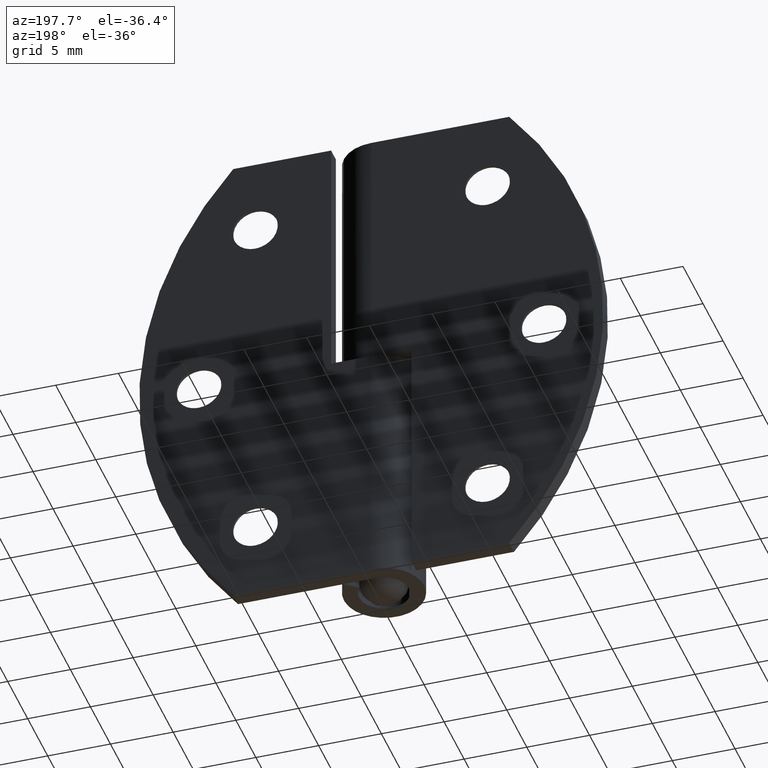
[diagram: clean part render]
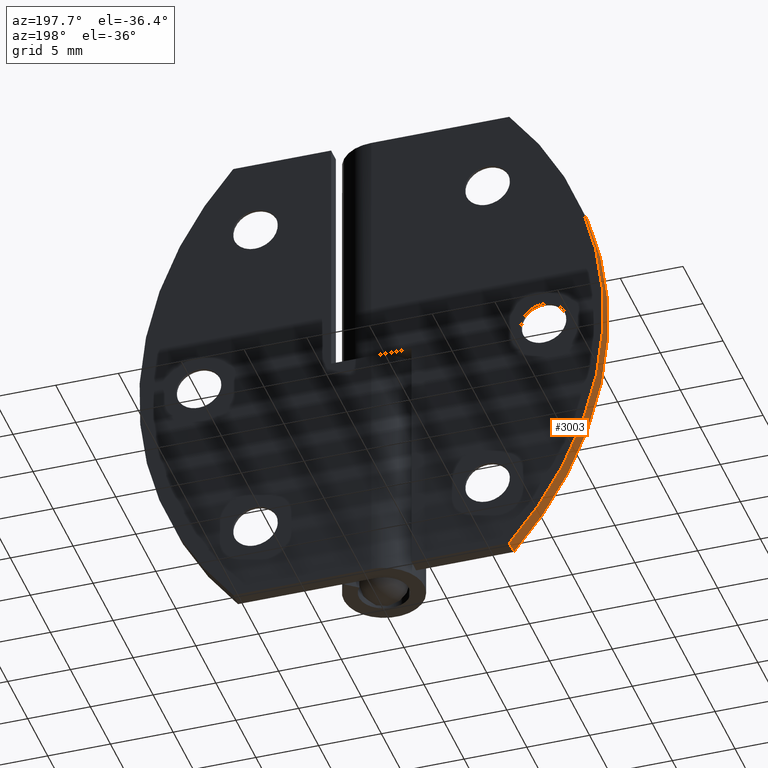
[diagram: same view with one face highlighted and labeled with its STEP entity id]
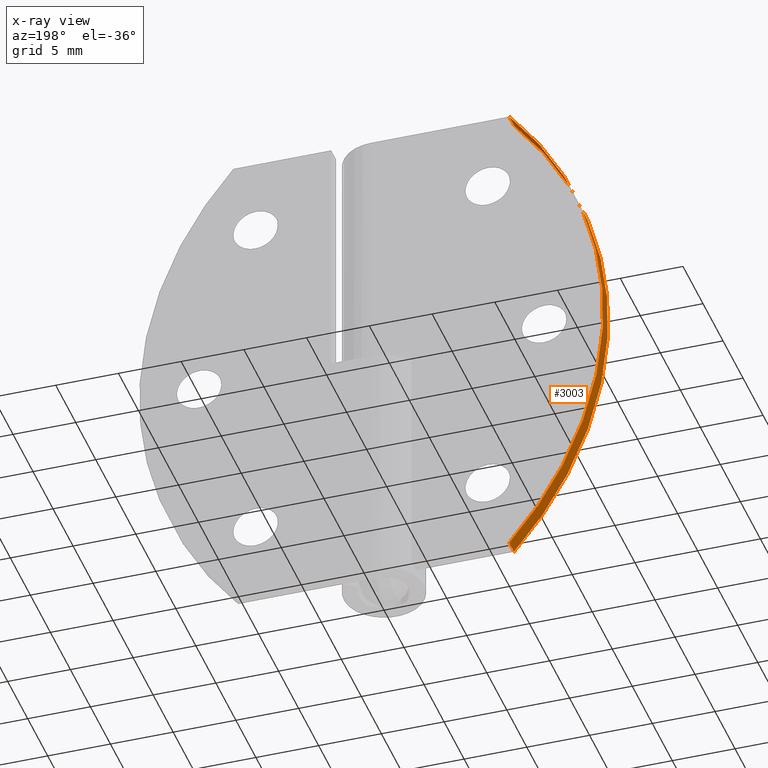
[diagram: x-ray of the same camera — body ghosted, the highlighted face saturated]
A machine part, auxiliary view. The second image highlights one B-rep face of the part: STEP entity #3003.
The next image is the same camera in x-ray: the body ghosted, the highlighted face saturated — about 0% of this face is hidden behind the body in this view.
In plain terms, the highlighted face is a freeform B-spline surface patch.
Its self-contained STEP definition (entity closure, byte-faithful):
#2943=CARTESIAN_POINT('',(-10.823716736473161,1.969999975000001,40.401547660187987));
#2944=CARTESIAN_POINT('',(-10.823716736473161,3.230751025624954,40.401547660187987));
#2945=CARTESIAN_POINT('',(-29.426659570966152,1.969999975000001,19.318861404257586));
#2946=CARTESIAN_POINT('',(-29.426659570966152,3.230751025624954,19.318861404257586));
#2947=CARTESIAN_POINT('',(-10.045552601309041,1.969999975000001,-1.050768796119622));
#2948=CARTESIAN_POINT('',(-10.045552601309041,3.230751025624954,-1.050768796119622));
#2956=(BOUNDED_SURFACE()B_SPLINE_SURFACE(1,2,((#2943,#2945,#2947),(#2944,#2946,#2948)),.UNSPECIFIED.,.F.,.F.,.U.)B_SPLINE_SURFACE_WITH_KNOTS((2,2),(3,3),(0.0,1.0),(0.0,47.729420032708489),.UNSPECIFIED.)GEOMETRIC_REPRESENTATION_ITEM()RATIONAL_B_SPLINE_SURFACE(((1.0,0.737277336810124,1.0),(1.0,0.737277336810124,1.0)))REPRESENTATION_ITEM('')SURFACE());
#2957=CARTESIAN_POINT('',(-11.000002866977200,3.200000999999955,40.199997000000103));
#2958=VERTEX_POINT('',#2957);
#2959=CARTESIAN_POINT('',(-11.000003733954220,3.200000999999955,0.0));
#2960=VERTEX_POINT('',#2959);
#2961=CARTESIAN_POINT('',(-11.000002866977200,3.200000999999955,40.199997000000089));
#2962=CARTESIAN_POINT('',(-28.426241958064832,3.200000999999955,20.099998875824660));
#2963=CARTESIAN_POINT('',(-11.000003733954220,3.200000999999955,3.469447E-015));
#2971=(BOUNDED_CURVE()B_SPLINE_CURVE(2,(#2961,#2962,#2963),.UNSPECIFIED.,.F.,.U.)CURVE()GEOMETRIC_REPRESENTATION_ITEM()QUASI_UNIFORM_CURVE()RATIONAL_B_SPLINE_CURVE((1.0,0.755572979418124,1.0))REPRESENTATION_ITEM(''));
#2972=EDGE_CURVE('',#2958,#2960,#2971,.T.);
#2973=ORIENTED_EDGE('',*,*,#2972,.T.);
#2974=CARTESIAN_POINT('',(-11.000003733954220,2.0,0.0));
#2975=VERTEX_POINT('',#2974);
#2976=CARTESIAN_POINT('',(-11.000003733954220,2.0,0.0));
#2977=CARTESIAN_POINT('',(-11.000003733954220,3.200000999999955,0.0));
#2978=QUASI_UNIFORM_CURVE('',1,(#2976,#2977),.UNSPECIFIED.,.F.,.U.);
#2979=EDGE_CURVE('',#2975,#2960,#2978,.T.);
#2980=ORIENTED_EDGE('',*,*,#2979,.F.);
#2981=CARTESIAN_POINT('',(-11.000002866977200,2.0,40.199997000000103));
#2982=VERTEX_POINT('',#2981);
#2983=CARTESIAN_POINT('',(-11.000002866977200,2.0,40.199997000000089));
#2984=CARTESIAN_POINT('',(-28.426241958064832,2.0,20.099998875824660));
#2985=CARTESIAN_POINT('',(-11.000003733954220,2.0,3.469447E-015));
#2993=(BOUNDED_CURVE()B_SPLINE_CURVE(2,(#2983,#2984,#2985),.UNSPECIFIED.,.F.,.U.)CURVE()GEOMETRIC_REPRESENTATION_ITEM()QUASI_UNIFORM_CURVE()RATIONAL_B_SPLINE_CURVE((1.0,0.755572979418124,1.0))REPRESENTATION_ITEM(''));
#2994=EDGE_CURVE('',#2982,#2975,#2993,.T.);
#2995=ORIENTED_EDGE('',*,*,#2994,.F.);
#2996=CARTESIAN_POINT('',(-11.000002866977200,2.0,40.199997000000103));
#2997=CARTESIAN_POINT('',(-11.000002866977200,3.200000999999955,40.199997000000103));
#2998=QUASI_UNIFORM_CURVE('',1,(#2996,#2997),.UNSPECIFIED.,.F.,.U.);
#2999=EDGE_CURVE('',#2982,#2958,#2998,.T.);
#3000=ORIENTED_EDGE('',*,*,#2999,.T.);
#3001=EDGE_LOOP('',(#2973,#2980,#2995,#3000));
#3002=FACE_OUTER_BOUND('',#3001,.T.);
#3003=ADVANCED_FACE('',(#3002),#2956,.T.);